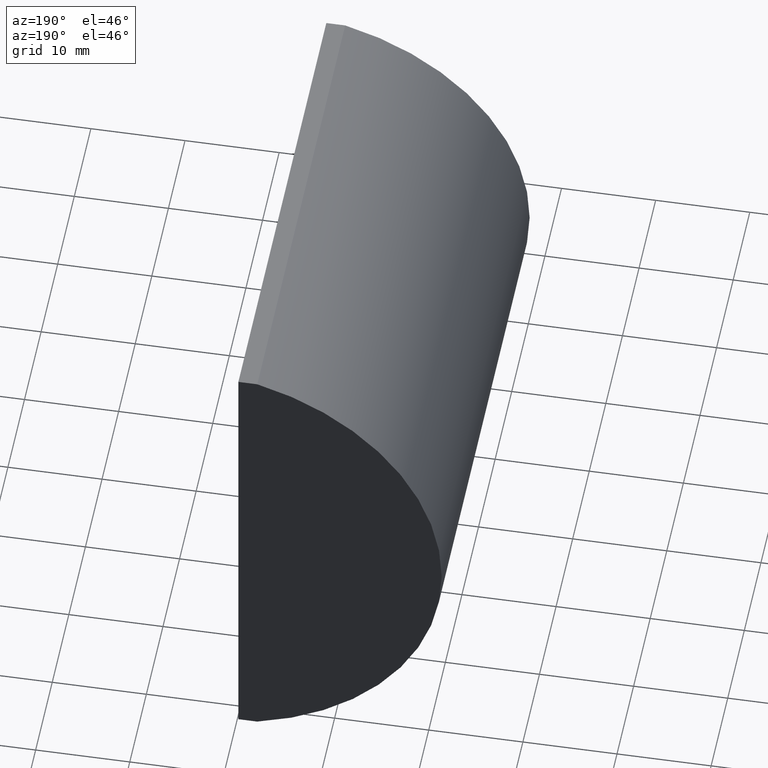
[diagram: clean part render]
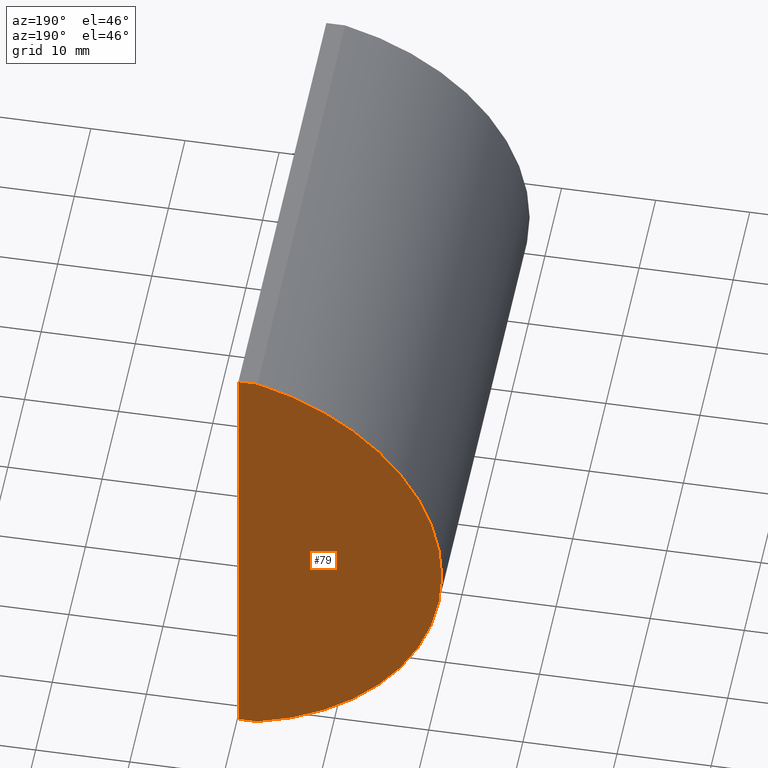
[diagram: same view with one face highlighted and labeled with its STEP entity id]
A machine part, auxiliary view. The second image highlights one B-rep face of the part: STEP entity #79.
In plain terms, the highlighted planar face has unit normal (0, 1, 0).
Its self-contained STEP definition (entity closure, byte-faithful):
#2 = DIRECTION ( 'NONE',  ( -1.000000000000000000, -0.0000000000000000000, -0.0000000000000000000 ) ) ;
#9 = VERTEX_POINT ( 'NONE', #184 ) ;
#13 = DIRECTION ( 'NONE',  ( 0.0000000000000000000, 1.000000000000000000, 0.0000000000000000000 ) ) ;
#15 = DIRECTION ( 'NONE',  ( 0.0000000000000000000, -0.0000000000000000000, 1.000000000000000000 ) ) ;
#16 = EDGE_CURVE ( 'NONE', #9, #82, #98, .T. ) ;
#18 = DIRECTION ( 'NONE',  ( -3.062657711647045300E-016, -0.0000000000000000000, -1.000000000000000000 ) ) ;
#21 = EDGE_CURVE ( 'NONE', #26, #204, #196, .T. ) ;
#25 = ORIENTED_EDGE ( 'NONE', *, *, #27, .T. ) ;
#26 = VERTEX_POINT ( 'NONE', #50 ) ;
#27 = EDGE_CURVE ( 'NONE', #82, #26, #104, .T. ) ;
#34 = LINE ( 'NONE', #143, #138 ) ;
#37 = PLANE ( 'NONE',  #84 ) ;
#45 = AXIS2_PLACEMENT_3D ( 'NONE', #200, #13, #63 ) ;
#50 = CARTESIAN_POINT ( 'NONE',  ( -0.3047956651487313000, 53.00000000000000000, 25.39999999999999900 ) ) ;
#53 = EDGE_LOOP ( 'NONE', ( #183, #25, #159, #181 ) ) ;
#56 = CARTESIAN_POINT ( 'NONE',  ( -2.310198878758567900, 53.00000000000000000, 25.39999999999999900 ) ) ;
#63 = DIRECTION ( 'NONE',  ( 0.0000000000000000000, 0.0000000000000000000, 1.000000000000000000 ) ) ;
#75 = CARTESIAN_POINT ( 'NONE',  ( -0.3047956651487468400, 53.00000000000000000, -25.39999999999999900 ) ) ;
#78 = CARTESIAN_POINT ( 'NONE',  ( 4.355204334851265500, 53.00000000000000000, 4.286263797015675000E-017 ) ) ;
#79 = ADVANCED_FACE ( 'NONE', ( #162 ), #37, .T. ) ;
#82 = VERTEX_POINT ( 'NONE', #56 ) ;
#84 = AXIS2_PLACEMENT_3D ( 'NONE', #78, #113, #15 ) ;
#95 = DIRECTION ( 'NONE',  ( 1.000000000000000000, 0.0000000000000000000, 0.0000000000000000000 ) ) ;
#98 = CIRCLE ( 'NONE', #45, 26.26000000000001200 ) ;
#104 = LINE ( 'NONE', #157, #172 ) ;
#110 = CARTESIAN_POINT ( 'NONE',  ( -0.3047956651487468400, 53.00000000000000000, -25.39999999999999900 ) ) ;
#113 = DIRECTION ( 'NONE',  ( 0.0000000000000000000, 1.000000000000000000, 0.0000000000000000000 ) ) ;
#117 = VECTOR ( 'NONE', #18, 1000.000000000000000 ) ;
#119 = EDGE_CURVE ( 'NONE', #204, #9, #34, .T. ) ;
#138 = VECTOR ( 'NONE', #2, 1000.000000000000000 ) ;
#143 = CARTESIAN_POINT ( 'NONE',  ( -2.310198878758607000, 53.00000000000000000, -25.39999999999999900 ) ) ;
#157 = CARTESIAN_POINT ( 'NONE',  ( -2.310198878758567900, 53.00000000000000000, 25.39999999999999900 ) ) ;
#159 = ORIENTED_EDGE ( 'NONE', *, *, #21, .T. ) ;
#162 = FACE_OUTER_BOUND ( 'NONE', #53, .T. ) ;
#172 = VECTOR ( 'NONE', #95, 1000.000000000000000 ) ;
#181 = ORIENTED_EDGE ( 'NONE', *, *, #119, .T. ) ;
#183 = ORIENTED_EDGE ( 'NONE', *, *, #16, .T. ) ;
#184 = CARTESIAN_POINT ( 'NONE',  ( -2.310198878758607000, 53.00000000000000000, -25.39999999999999900 ) ) ;
#196 = LINE ( 'NONE', #75, #117 ) ;
#200 = CARTESIAN_POINT ( 'NONE',  ( 4.355204334851265500, 53.00000000000000000, 4.286263797015675000E-017 ) ) ;
#204 = VERTEX_POINT ( 'NONE', #110 ) ;